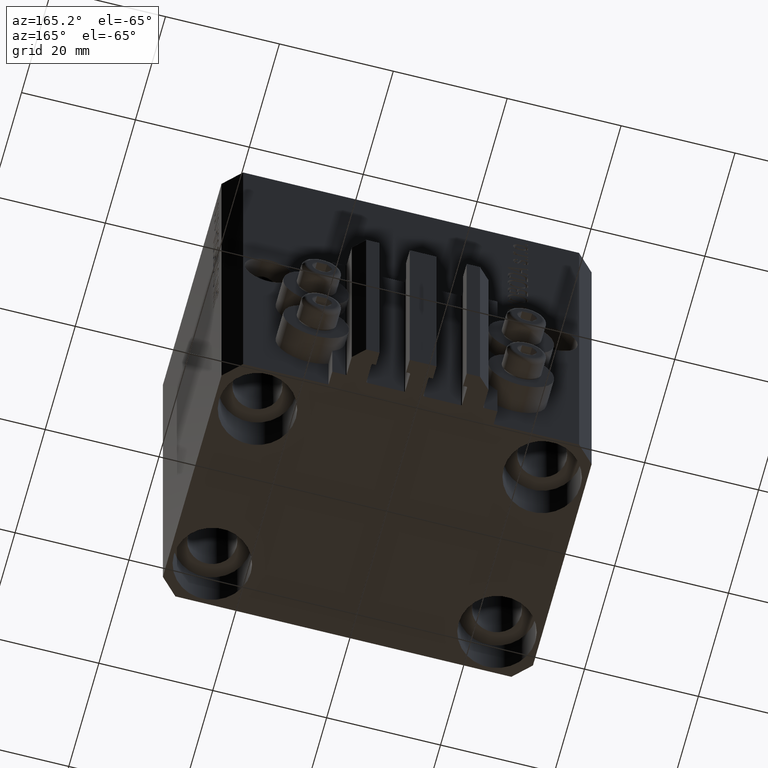
[diagram: clean part render]
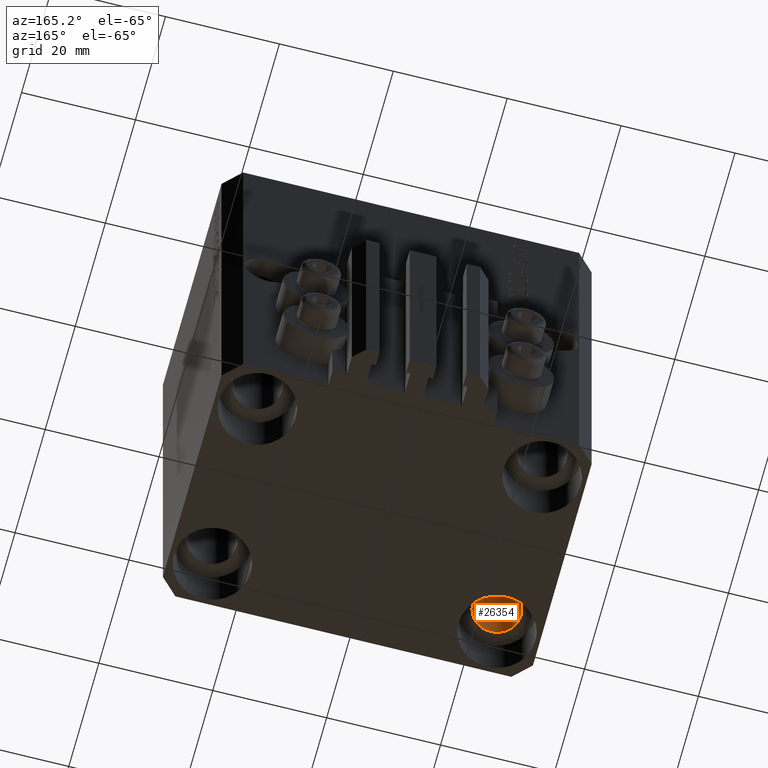
[diagram: same view with one face highlighted and labeled with its STEP entity id]
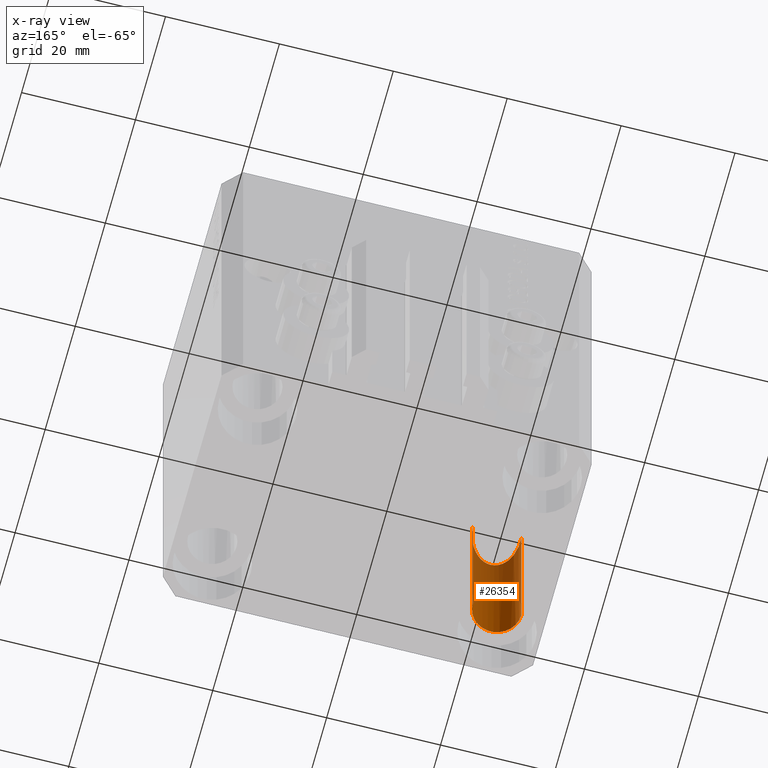
[diagram: x-ray of the same camera — body ghosted, the highlighted face saturated]
A machine part, auxiliary view. The second image highlights one B-rep face of the part: STEP entity #26354.
The next image is the same camera in x-ray: the body ghosted, the highlighted face saturated — about 58% of this face is hidden behind the body in this view.
In plain terms, the highlighted cylindrical surface (edge-blend (fillet) strip) has radius 4.25 mm, axis along (0, 0, 1).
Its self-contained STEP definition (entity closure, byte-faithful):
#4667 = ORIENTED_EDGE ( 'NONE', *, *, #11156, .T. ) ;
#5424 = LINE ( 'NONE', #8767, #23710 ) ;
#8767 = CARTESIAN_POINT ( 'NONE',  ( -29.25000000004154543, -15.00000000000000000, -77.00000000000000000 ) ) ;
#9034 = DIRECTION ( 'NONE',  ( 0.000000000000000000, 0.000000000000000000, -1.000000000000000000 ) ) ;
#9378 = ORIENTED_EDGE ( 'NONE', *, *, #25546, .F. ) ;
#9635 = EDGE_LOOP ( 'NONE', ( #16422, #22903, #4667, #9378 ) ) ;
#9914 = CARTESIAN_POINT ( 'NONE',  ( -29.25000000001766409, -15.00000000000000000, -37.00000000000000000 ) ) ;
#10072 = CARTESIAN_POINT ( 'NONE',  ( -20.74999999995846522, -15.00000000000000000, -68.00000000000000000 ) ) ;
#11090 = CARTESIAN_POINT ( 'NONE',  ( -20.74999999998233946, -15.00000000000000000, -37.00000000000000000 ) ) ;
#11156 = EDGE_CURVE ( 'NONE', #19357, #20770, #36985, .T. ) ;
#14325 = FACE_OUTER_BOUND ( 'NONE', #9635, .T. ) ;
#16025 = AXIS2_PLACEMENT_3D ( 'NONE', #17913, #26014, #43665 ) ;
#16422 = ORIENTED_EDGE ( 'NONE', *, *, #17172, .T. ) ;
#17172 = EDGE_CURVE ( 'NONE', #33748, #37341, #24115, .T. ) ;
#17913 = CARTESIAN_POINT ( 'NONE',  ( -25.00000000000000355, -15.00000000000000000, -77.00000000000000000 ) ) ;
#19036 = DIRECTION ( 'NONE',  ( -0.000000000000000000, -0.000000000000000000, 1.000000000000000000 ) ) ;
#19357 = VERTEX_POINT ( 'NONE', #44800 ) ;
#20770 = VERTEX_POINT ( 'NONE', #44228 ) ;
#21037 = CARTESIAN_POINT ( 'NONE',  ( -20.74999999995846522, -15.00000000000000000, -77.00000000000000000 ) ) ;
#22061 = CARTESIAN_POINT ( 'NONE',  ( -29.25000000001766409, -23.50000000003532108, -45.50000000003532108 ) ) ;
#22903 = ORIENTED_EDGE ( 'NONE', *, *, #32398, .T. ) ;
#23710 = VECTOR ( 'NONE', #19036, 1000.000000000000000 ) ;
#24115 = CIRCLE ( 'NONE', #26400, 4.250000000041540105 ) ;
#24613 = LINE ( 'NONE', #21037, #41895 ) ;
#25546 = EDGE_CURVE ( 'NONE', #33748, #20770, #24613, .T. ) ;
#26014 = DIRECTION ( 'NONE',  ( -0.000000000000000000, -0.000000000000000000, 1.000000000000000000 ) ) ;
#26233 = DIRECTION ( 'NONE',  ( -1.000000000000000000, 0.000000000000000000, 0.000000000000000000 ) ) ;
#26354 = ADVANCED_FACE ( 'NONE', ( #14325 ), #29122, .F. ) ;
#26400 = AXIS2_PLACEMENT_3D ( 'NONE', #41715, #9034, #26233 ) ;
#29122 = CYLINDRICAL_SURFACE ( 'NONE', #16025, 4.250000000041540105 ) ;
#32398 = EDGE_CURVE ( 'NONE', #37341, #19357, #5424, .T. ) ;
#33748 = VERTEX_POINT ( 'NONE', #10072 ) ;
#35582 = DIRECTION ( 'NONE',  ( -0.000000000000000000, -0.000000000000000000, 1.000000000000000000 ) ) ;
#36985 =( BOUNDED_CURVE ( )  B_SPLINE_CURVE ( 3, ( #9914, #22061, #39721, #11090 ),
 .UNSPECIFIED., .F., .F. ) 
 B_SPLINE_CURVE_WITH_KNOTS ( ( 4, 4 ),
 ( 1.570796326794896558, 4.712388980384689674 ),
 .UNSPECIFIED. ) 
 CURVE ( )  GEOMETRIC_REPRESENTATION_ITEM ( )  RATIONAL_B_SPLINE_CURVE ( ( 1.000000000000000000, 0.3333333333333333703, 0.3333333333333333703, 1.000000000000000000 ) ) 
 REPRESENTATION_ITEM ( '' )  );
#37341 = VERTEX_POINT ( 'NONE', #41223 ) ;
#39721 = CARTESIAN_POINT ( 'NONE',  ( -20.74999999998234301, -23.50000000003532108, -45.50000000003532108 ) ) ;
#41223 = CARTESIAN_POINT ( 'NONE',  ( -29.25000000004154543, -15.00000000000000000, -68.00000000000000000 ) ) ;
#41715 = CARTESIAN_POINT ( 'NONE',  ( -25.00000000000000355, -15.00000000000000000, -68.00000000000000000 ) ) ;
#41895 = VECTOR ( 'NONE', #35582, 1000.000000000000000 ) ;
#43665 = DIRECTION ( 'NONE',  ( 1.000000000000000000, 0.000000000000000000, 0.000000000000000000 ) ) ;
#44228 = CARTESIAN_POINT ( 'NONE',  ( -20.74999999998233946, -15.00000000000000000, -37.00000000000000000 ) ) ;
#44800 = CARTESIAN_POINT ( 'NONE',  ( -29.25000000001766409, -15.00000000000000000, -37.00000000000000000 ) ) ;